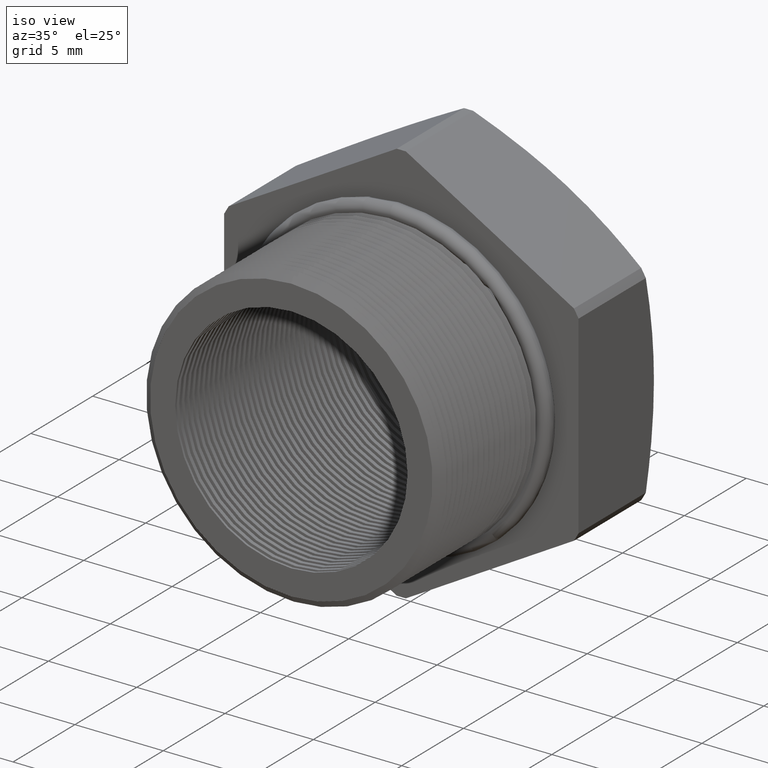
[diagram: clean part render]
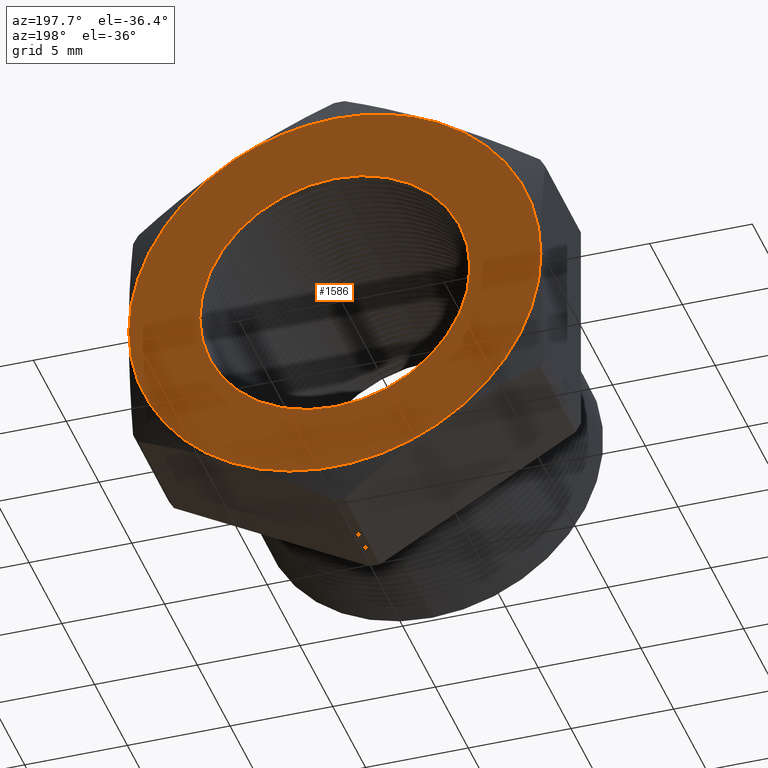
[diagram: tour spotlight — one face highlighted and labeled with its STEP entity id]
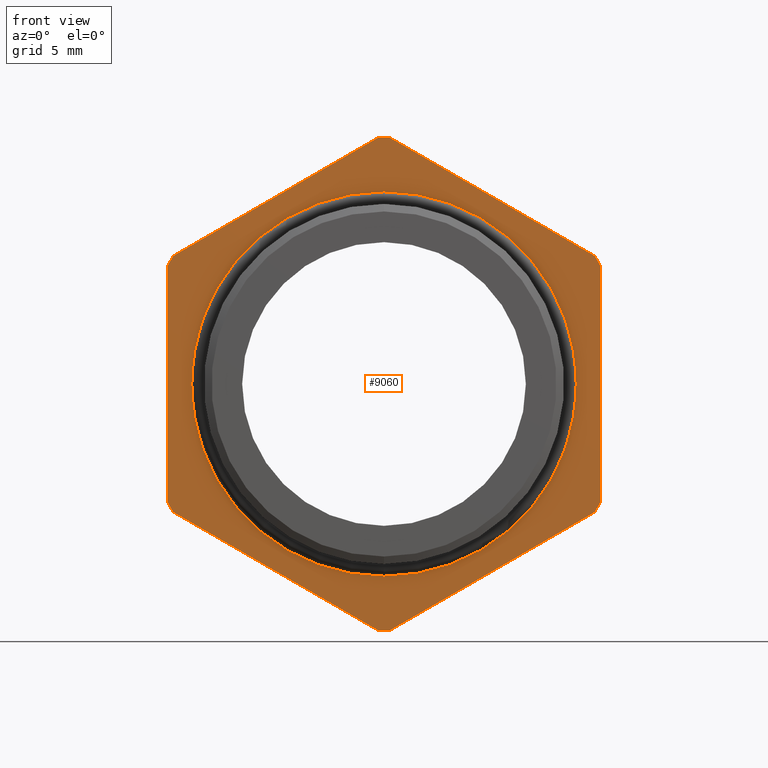
[diagram: tour spotlight — one face highlighted and labeled with its STEP entity id]
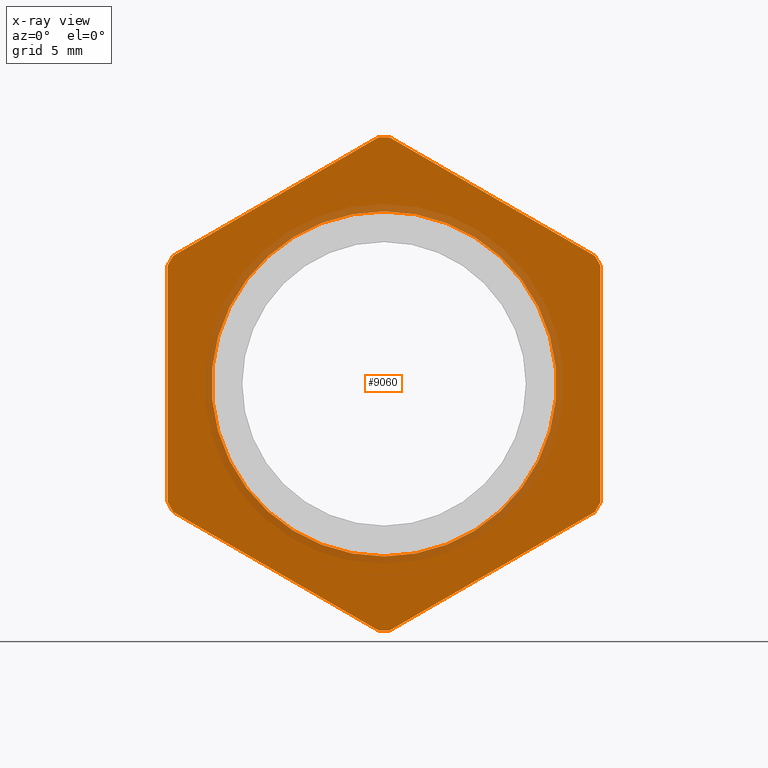
[diagram: x-ray of the same camera — body ghosted, this tour face saturated]
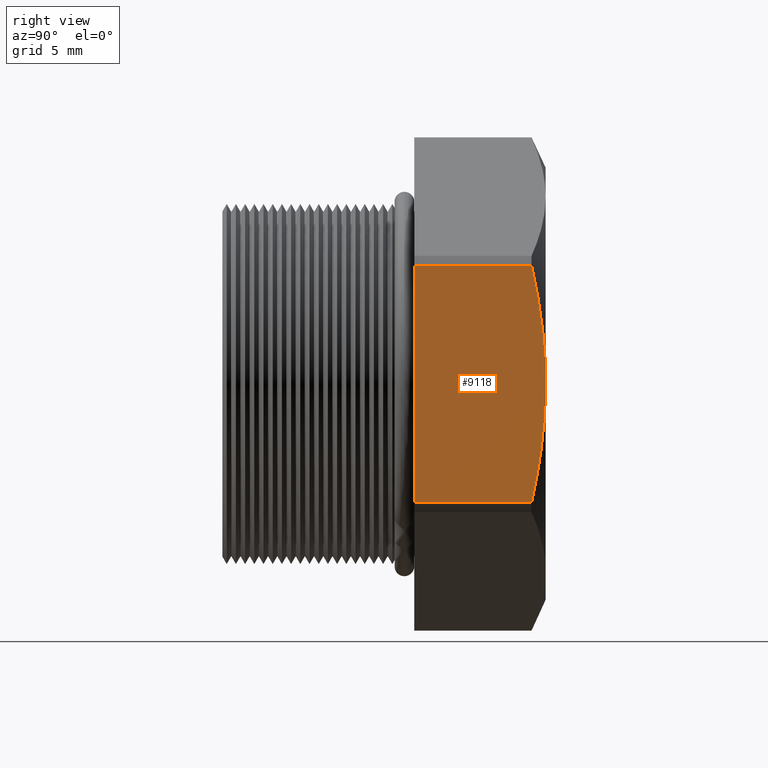
[diagram: tour spotlight — one face highlighted and labeled with its STEP entity id]
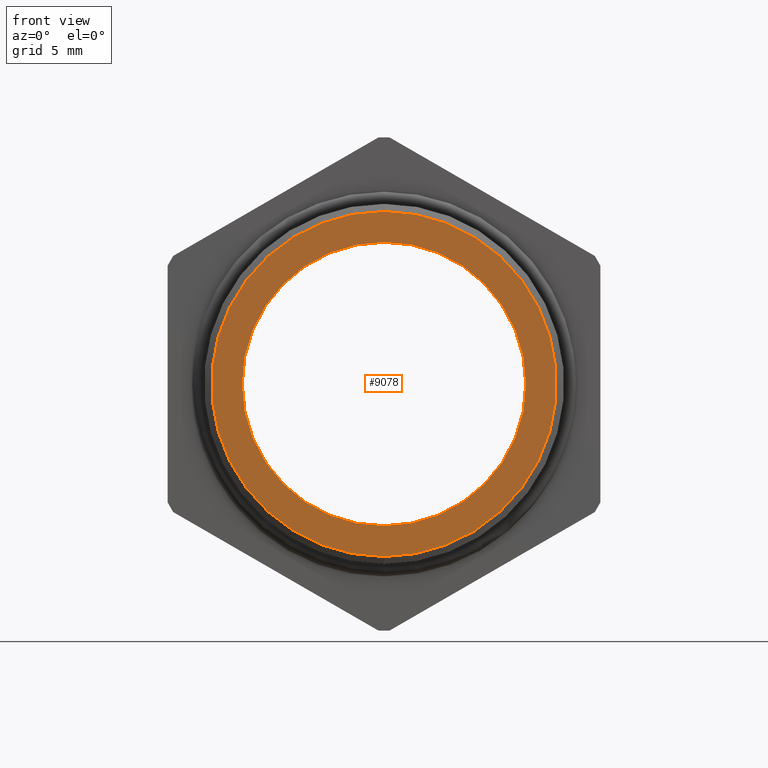
[diagram: tour spotlight — one face highlighted and labeled with its STEP entity id]
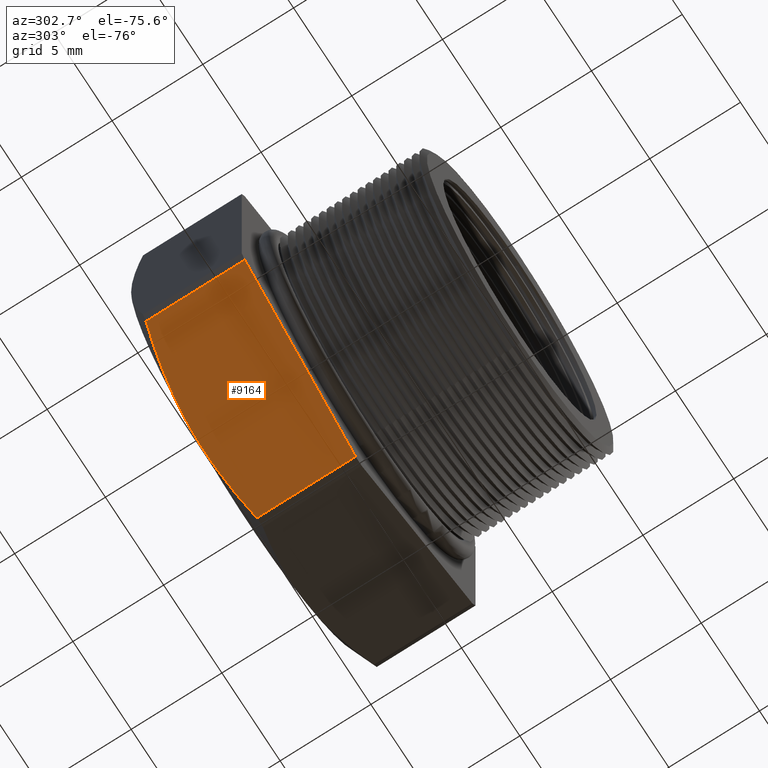
[diagram: tour spotlight — one face highlighted and labeled with its STEP entity id]
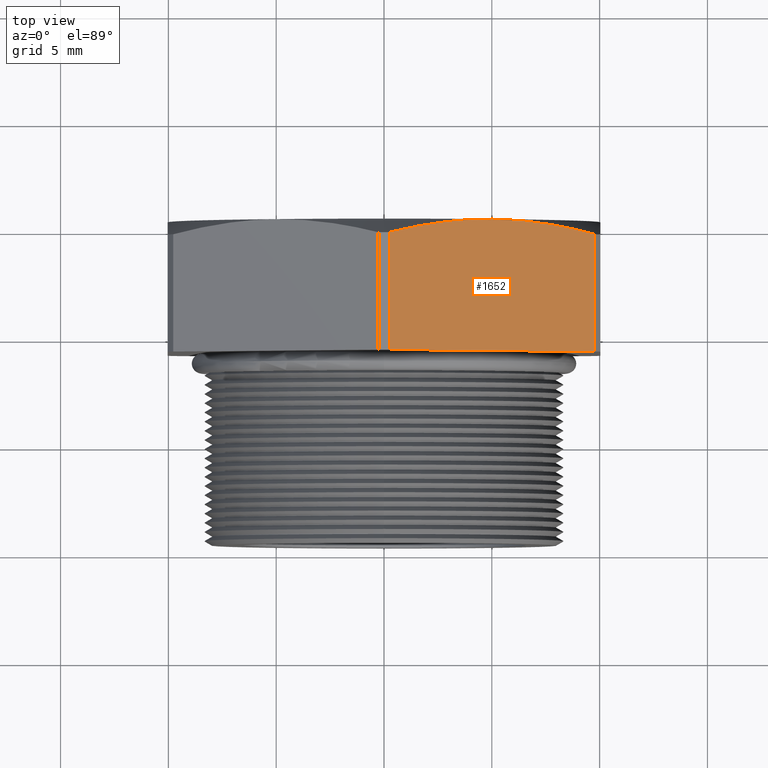
[diagram: tour spotlight — one face highlighted and labeled with its STEP entity id]
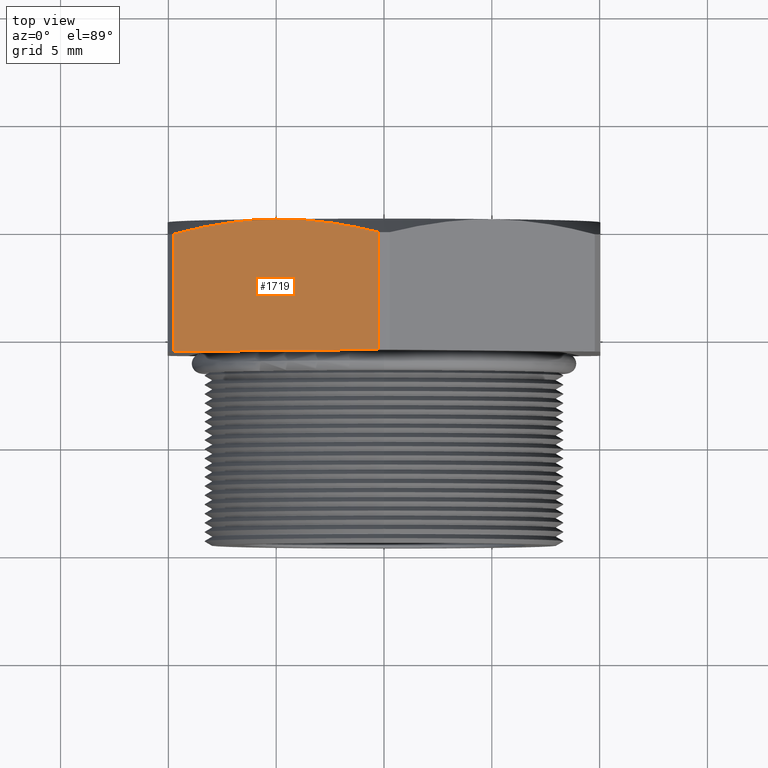
[diagram: tour spotlight — one face highlighted and labeled with its STEP entity id]
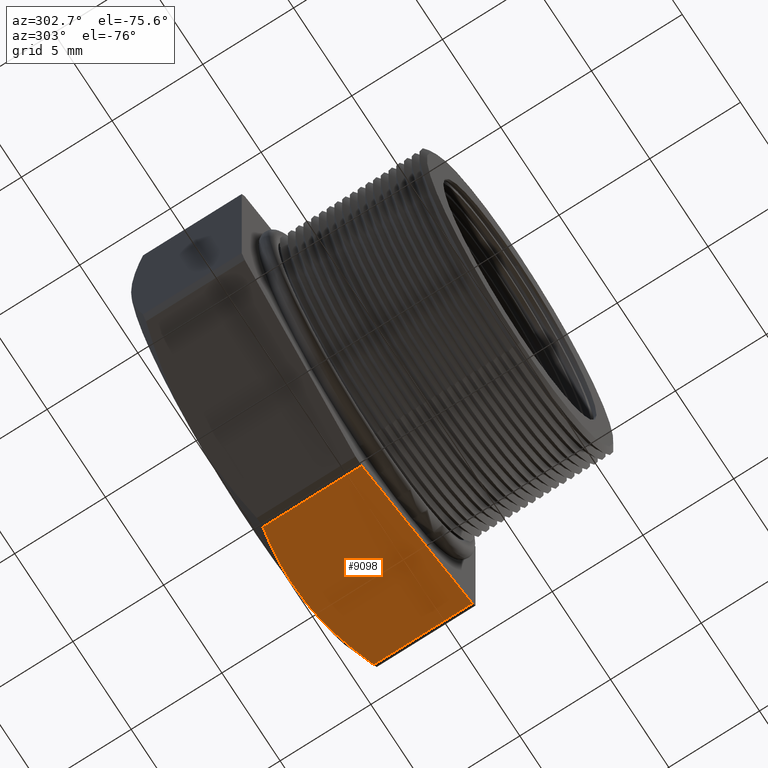
[diagram: tour spotlight — one face highlighted and labeled with its STEP entity id]
A machine part: a face-by-face anatomy tour. The part has 361 B-rep faces; the first image is the clean iso view, then the 8 largest visible faces are spotlighted one at a time (largest first), each with its STEP entity span.

Face 1 — auxiliary view, entity #1586. In plain terms, the highlighted planar face has unit normal (0, 1, 0).
Definition (entity closure, byte-faithful):
#1110 = EDGE_CURVE ( 'NONE', #1162, #1163, #3936, .T. ) ;
#1162 = VERTEX_POINT ( 'NONE', #4024 ) ;
#1163 = VERTEX_POINT ( 'NONE', #4018 ) ;
#1567 = ORIENTED_EDGE ( 'NONE', *, *, #1568, .T. ) ;
#1568 = EDGE_CURVE ( 'NONE', #8995, #1569, #4746, .T. ) ;
#1569 = VERTEX_POINT ( 'NONE', #4736 ) ;
#1570 = ORIENTED_EDGE ( 'NONE', *, *, #1571, .T. ) ;
#1571 = EDGE_CURVE ( 'NONE', #1569, #1572, #4735, .T. ) ;
#1572 = VERTEX_POINT ( 'NONE', #4730 ) ;
#1573 = ORIENTED_EDGE ( 'NONE', *, *, #1574, .T. ) ;
#1574 = EDGE_CURVE ( 'NONE', #1572, #1575, #4729, .T. ) ;
#1575 = VERTEX_POINT ( 'NONE', #4724 ) ;
#1576 = ORIENTED_EDGE ( 'NONE', *, *, #1577, .T. ) ;
#1577 = EDGE_CURVE ( 'NONE', #1575, #1578, #4785, .T. ) ;
#1578 = VERTEX_POINT ( 'NONE', #4780 ) ;
#1579 = ORIENTED_EDGE ( 'NONE', *, *, #1580, .T. ) ;
#1580 = EDGE_CURVE ( 'NONE', #1578, #1594, #4778, .T. ) ;
#1586 = ADVANCED_FACE ( 'NONE', ( #4764, #4763 ), #4762, .T. ) ;
#1587 = EDGE_LOOP ( 'NONE', ( #1588, #1590 ) ) ;
#1588 = ORIENTED_EDGE ( 'NONE', *, *, #1589, .T. ) ;
#1589 = EDGE_CURVE ( 'NONE', #1163, #1162, #4760, .T. ) ;
#1590 = ORIENTED_EDGE ( 'NONE', *, *, #1110, .T. ) ;
#1591 = EDGE_LOOP ( 'NONE', ( #1592, #1595, #1567, #1570, #1573, #1576, #1579 ) ) ;
#1592 = ORIENTED_EDGE ( 'NONE', *, *, #1593, .T. ) ;
#1593 = EDGE_CURVE ( 'NONE', #1594, #9000, #4817, .T. ) ;
#1594 = VERTEX_POINT ( 'NONE', #4812 ) ;
#1595 = ORIENTED_EDGE ( 'NONE', *, *, #9003, .T. ) ;
#3927 = DIRECTION ( 'NONE',  ( 0.0000000000000000000, 0.0000000000000000000, -1.000000000000000000 ) ) ;
#3928 = DIRECTION ( 'NONE',  ( -0.0000000000000000000, -1.000000000000000000, -0.0000000000000000000 ) ) ;
#3929 = CARTESIAN_POINT ( 'NONE',  ( 0.0000000000000000000, 0.4075548905829479200, 0.0000000000000000000 ) ) ;
#3930 = AXIS2_PLACEMENT_3D ( 'NONE', #3929, #3928, #3927 ) ;
#3936 = CIRCLE ( 'NONE', #3930, 0.2589880461203001900 ) ;
#4018 = CARTESIAN_POINT ( 'NONE',  ( 0.0000000000000000000, 0.4075548905829479200, -0.2589880461203001900 ) ) ;
#4024 = CARTESIAN_POINT ( 'NONE',  ( 3.171688816986526800E-017, 0.4075548905829479200, 0.2589880461203001900 ) ) ;
#4724 = CARTESIAN_POINT ( 'NONE',  ( -0.1975000000000000900, 0.4075548905829479200, -0.3420800344948531900 ) ) ;
#4725 = DIRECTION ( 'NONE',  ( 0.0000000000000000000, 0.0000000000000000000, 1.000000000000000000 ) ) ;
#4726 = DIRECTION ( 'NONE',  ( 0.0000000000000000000, 1.000000000000000000, 0.0000000000000000000 ) ) ;
#4727 = CARTESIAN_POINT ( 'NONE',  ( 0.0000000000000000000, 0.4075548905829479200, 0.0000000000000000000 ) ) ;
#4728 = AXIS2_PLACEMENT_3D ( 'NONE', #4727, #4726, #4725 ) ;
#4729 = CIRCLE ( 'NONE', #4728, 0.3949999999999999600 ) ;
#4730 = CARTESIAN_POINT ( 'NONE',  ( 0.1975000000000000400, 0.4075548905829479200, -0.3420800344948534700 ) ) ;
#4731 = DIRECTION ( 'NONE',  ( 0.0000000000000000000, 0.0000000000000000000, 1.000000000000000000 ) ) ;
#4732 = DIRECTION ( 'NONE',  ( 0.0000000000000000000, 1.000000000000000000, 0.0000000000000000000 ) ) ;
#4733 = CARTESIAN_POINT ( 'NONE',  ( 0.0000000000000000000, 0.4075548905829479200, 0.0000000000000000000 ) ) ;
#4734 = AXIS2_PLACEMENT_3D ( 'NONE', #4733, #4732, #4731 ) ;
#4735 = CIRCLE ( 'NONE', #4734, 0.3949999999999999600 ) ;
#4736 = CARTESIAN_POINT ( 'NONE',  ( 0.3949999999999999600, 0.4075548905829479200, 1.182924880895400500E-016 ) ) ;
#4737 = DIRECTION ( 'NONE',  ( 0.0000000000000000000, 0.0000000000000000000, 1.000000000000000000 ) ) ;
#4738 = DIRECTION ( 'NONE',  ( 0.0000000000000000000, 1.000000000000000000, 0.0000000000000000000 ) ) ;
#4739 = CARTESIAN_POINT ( 'NONE',  ( 0.0000000000000000000, 0.4075548905829479200, 0.0000000000000000000 ) ) ;
#4740 = AXIS2_PLACEMENT_3D ( 'NONE', #4739, #4738, #4737 ) ;
#4746 = CIRCLE ( 'NONE', #4740, 0.3949999999999999600 ) ;
#4753 = DIRECTION ( 'NONE',  ( 0.0000000000000000000, 0.0000000000000000000, -1.000000000000000000 ) ) ;
#4754 = DIRECTION ( 'NONE',  ( -0.0000000000000000000, -1.000000000000000000, -0.0000000000000000000 ) ) ;
#4755 = CARTESIAN_POINT ( 'NONE',  ( 0.0000000000000000000, 0.4075548905829479200, 0.0000000000000000000 ) ) ;
#4756 = AXIS2_PLACEMENT_3D ( 'NONE', #4755, #4754, #4753 ) ;
#4757 = DIRECTION ( 'NONE',  ( 0.0000000000000000000, -0.0000000000000000000, 1.000000000000000000 ) ) ;
#4758 = DIRECTION ( 'NONE',  ( 0.0000000000000000000, 1.000000000000000000, 0.0000000000000000000 ) ) ;
#4759 = AXIS2_PLACEMENT_3D ( 'NONE', #4761, #4758, #4757 ) ;
#4760 = CIRCLE ( 'NONE', #4756, 0.2589880461203001900 ) ;
#4761 = CARTESIAN_POINT ( 'NONE',  ( 0.4502999999999999800, 0.4075548905829479200, 0.0000000000000000000 ) ) ;
#4762 = PLANE ( 'NONE',  #4759 ) ;
#4763 = FACE_OUTER_BOUND ( 'NONE', #1591, .T. ) ;
#4764 = FACE_BOUND ( 'NONE', #1587, .T. ) ;
#4774 = DIRECTION ( 'NONE',  ( 0.0000000000000000000, 0.0000000000000000000, 1.000000000000000000 ) ) ;
#4775 = DIRECTION ( 'NONE',  ( 0.0000000000000000000, 1.000000000000000000, 0.0000000000000000000 ) ) ;
#4776 = CARTESIAN_POINT ( 'NONE',  ( 0.0000000000000000000, 0.4075548905829479200, 0.0000000000000000000 ) ) ;
#4777 = AXIS2_PLACEMENT_3D ( 'NONE', #4776, #4775, #4774 ) ;
#4778 = CIRCLE ( 'NONE', #4777, 0.3949999999999999600 ) ;
#4780 = CARTESIAN_POINT ( 'NONE',  ( -0.3949999999999999600, 0.4075548905829479200, 0.0000000000000000000 ) ) ;
#4781 = DIRECTION ( 'NONE',  ( 0.0000000000000000000, 0.0000000000000000000, 1.000000000000000000 ) ) ;
#4782 = DIRECTION ( 'NONE',  ( 0.0000000000000000000, 1.000000000000000000, 0.0000000000000000000 ) ) ;
#4783 = CARTESIAN_POINT ( 'NONE',  ( 0.0000000000000000000, 0.4075548905829479200, 0.0000000000000000000 ) ) ;
#4784 = AXIS2_PLACEMENT_3D ( 'NONE', #4783, #4782, #4781 ) ;
#4785 = CIRCLE ( 'NONE', #4784, 0.3949999999999999600 ) ;
#4812 = CARTESIAN_POINT ( 'NONE',  ( -0.1975000000000000100, 0.4075548905829479200, 0.3420800344948533600 ) ) ;
#4813 = DIRECTION ( 'NONE',  ( 0.0000000000000000000, 0.0000000000000000000, 1.000000000000000000 ) ) ;
#4814 = DIRECTION ( 'NONE',  ( 0.0000000000000000000, 1.000000000000000000, 0.0000000000000000000 ) ) ;
#4815 = CARTESIAN_POINT ( 'NONE',  ( 0.0000000000000000000, 0.4075548905829479200, 0.0000000000000000000 ) ) ;
#4816 = AXIS2_PLACEMENT_3D ( 'NONE', #4815, #4814, #4813 ) ;
#4817 = CIRCLE ( 'NONE', #4816, 0.3949999999999999600 ) ;
#7523 = CARTESIAN_POINT ( 'NONE',  ( 0.0000000000000000000, 0.4075548905829479200, 0.3949999999999999600 ) ) ;
#7524 = CARTESIAN_POINT ( 'NONE',  ( 0.1975000000000001800, 0.4075548905829479700, 0.3420800344948533000 ) ) ;
#7573 = DIRECTION ( 'NONE',  ( 0.0000000000000000000, 0.0000000000000000000, 1.000000000000000000 ) ) ;
#7574 = DIRECTION ( 'NONE',  ( 0.0000000000000000000, 1.000000000000000000, 0.0000000000000000000 ) ) ;
#7575 = CARTESIAN_POINT ( 'NONE',  ( 0.0000000000000000000, 0.4075548905829479200, 0.0000000000000000000 ) ) ;
#7576 = AXIS2_PLACEMENT_3D ( 'NONE', #7575, #7574, #7573 ) ;
#7577 = CIRCLE ( 'NONE', #7576, 0.3949999999999999600 ) ;
#8995 = VERTEX_POINT ( 'NONE', #7524 ) ;
#9000 = VERTEX_POINT ( 'NONE', #7523 ) ;
#9003 = EDGE_CURVE ( 'NONE', #9000, #8995, #7577, .T. ) ;

Face 2 — front view, entity #9060. An x-ray twin of the same camera follows (body ghosted, this face saturated) — the face is partly hidden behind the body. In plain terms, the highlighted planar face has unit normal (0, -1, -0).
Definition (entity closure, byte-faithful):
#1092 = EDGE_CURVE ( 'NONE', #1093, #1094, #3902, .T. ) ;
#1093 = VERTEX_POINT ( 'NONE', #3897 ) ;
#1094 = VERTEX_POINT ( 'NONE', #3896 ) ;
#1526 = VERTEX_POINT ( 'NONE', #4688 ) ;
#1582 = EDGE_CURVE ( 'NONE', #1583, #1526, #4773, .T. ) ;
#1583 = VERTEX_POINT ( 'NONE', #4769 ) ;
#1611 = VERTEX_POINT ( 'NONE', #4842 ) ;
#1613 = EDGE_CURVE ( 'NONE', #1526, #1611, #4840, .T. ) ;
#1618 = VERTEX_POINT ( 'NONE', #4826 ) ;
#1623 = VERTEX_POINT ( 'NONE', #4819 ) ;
#1630 = VERTEX_POINT ( 'NONE', #4870 ) ;
#1632 = EDGE_CURVE ( 'NONE', #1623, #1630, #4869, .T. ) ;
#1638 = VERTEX_POINT ( 'NONE', #4848 ) ;
#1645 = VERTEX_POINT ( 'NONE', #4901 ) ;
#1647 = EDGE_CURVE ( 'NONE', #1638, #1645, #4900, .T. ) ;
#1649 = VERTEX_POINT ( 'NONE', #4893 ) ;
#1651 = EDGE_CURVE ( 'NONE', #1669, #1649, #4888, .T. ) ;
#1662 = VERTEX_POINT ( 'NONE', #4922 ) ;
#1664 = EDGE_CURVE ( 'NONE', #1684, #1662, #4921, .T. ) ;
#1669 = VERTEX_POINT ( 'NONE', #4963 ) ;
#1677 = VERTEX_POINT ( 'NONE', #4948 ) ;
#1679 = EDGE_CURVE ( 'NONE', #1618, #1677, #4947, .T. ) ;
#1684 = VERTEX_POINT ( 'NONE', #4993 ) ;
#1718 = EDGE_CURVE ( 'NONE', #1645, #1669, #5001, .T. ) ;
#1728 = EDGE_CURVE ( 'NONE', #1649, #1684, #5042, .T. ) ;
#3896 = CARTESIAN_POINT ( 'NONE',  ( 3.857637417314162700E-017, 0.1675548905829479500, 0.3150000000000000000 ) ) ;
#3897 = CARTESIAN_POINT ( 'NONE',  ( 0.0000000000000000000, 0.1675548905829479500, -0.3150000000000000000 ) ) ;
#3898 = DIRECTION ( 'NONE',  ( 0.0000000000000000000, 0.0000000000000000000, -1.000000000000000000 ) ) ;
#3899 = DIRECTION ( 'NONE',  ( -0.0000000000000000000, -1.000000000000000000, -0.0000000000000000000 ) ) ;
#3900 = CARTESIAN_POINT ( 'NONE',  ( 0.0000000000000000000, 0.1675548905829479500, 0.0000000000000000000 ) ) ;
#3901 = AXIS2_PLACEMENT_3D ( 'NONE', #3900, #3899, #3898 ) ;
#3902 = CIRCLE ( 'NONE', #3901, 0.3150000000000000000 ) ;
#4688 = CARTESIAN_POINT ( 'NONE',  ( 0.0000000000000000000, 0.1675548905829479500, -0.4502999999999999800 ) ) ;
#4769 = CARTESIAN_POINT ( 'NONE',  ( -0.01026000026703719400, 0.1675548905829479500, -0.4501830987437449600 ) ) ;
#4770 = DIRECTION ( 'NONE',  ( 0.0000000000000000000, 0.0000000000000000000, -1.000000000000000000 ) ) ;
#4771 = DIRECTION ( 'NONE',  ( -0.0000000000000000000, -1.000000000000000000, -0.0000000000000000000 ) ) ;
#4772 = AXIS2_PLACEMENT_3D ( 'NONE', #4779, #4771, #4770 ) ;
#4773 = CIRCLE ( 'NONE', #4772, 0.4502999999999999800 ) ;
#4779 = CARTESIAN_POINT ( 'NONE',  ( 0.0000000000000000000, 0.1675548905829479500, 0.0000000000000000000 ) ) ;
#4819 = CARTESIAN_POINT ( 'NONE',  ( 0.3847399997329628000, 0.1675548905829479500, -0.2339769702459620100 ) ) ;
#4826 = CARTESIAN_POINT ( 'NONE',  ( -0.3949999999999999600, 0.1675548905829479500, -0.2162061284977833100 ) ) ;
#4836 = DIRECTION ( 'NONE',  ( 0.0000000000000000000, 0.0000000000000000000, -1.000000000000000000 ) ) ;
#4837 = DIRECTION ( 'NONE',  ( -0.0000000000000000000, -1.000000000000000000, -0.0000000000000000000 ) ) ;
#4838 = CARTESIAN_POINT ( 'NONE',  ( 0.0000000000000000000, 0.1675548905829479500, 0.0000000000000000000 ) ) ;
#4839 = AXIS2_PLACEMENT_3D ( 'NONE', #4838, #4837, #4836 ) ;
#4840 = CIRCLE ( 'NONE', #4839, 0.4502999999999999800 ) ;
#4842 = CARTESIAN_POINT ( 'NONE',  ( 0.01026000026703720500, 0.1675548905829479500, -0.4501830987437447900 ) ) ;
#4848 = CARTESIAN_POINT ( 'NONE',  ( 0.3949999999999999100, 0.1675548905829479500, 0.2162061284977834200 ) ) ;
#4865 = DIRECTION ( 'NONE',  ( 0.0000000000000000000, 0.0000000000000000000, -1.000000000000000000 ) ) ;
#4866 = DIRECTION ( 'NONE',  ( -0.0000000000000000000, -1.000000000000000000, -0.0000000000000000000 ) ) ;
#4867 = CARTESIAN_POINT ( 'NONE',  ( 0.0000000000000000000, 0.1675548905829479500, 0.0000000000000000000 ) ) ;
#4868 = AXIS2_PLACEMENT_3D ( 'NONE', #4867, #4866, #4865 ) ;
#4869 = CIRCLE ( 'NONE', #4868, 0.4502999999999999800 ) ;
#4870 = CARTESIAN_POINT ( 'NONE',  ( 0.3950000000000000200, 0.1675548905829479500, -0.2162061284977832000 ) ) ;
#4884 = DIRECTION ( 'NONE',  ( 0.0000000000000000000, 0.0000000000000000000, -1.000000000000000000 ) ) ;
#4885 = DIRECTION ( 'NONE',  ( -0.0000000000000000000, -1.000000000000000000, -0.0000000000000000000 ) ) ;
#4886 = CARTESIAN_POINT ( 'NONE',  ( 0.0000000000000000000, 0.1675548905829479500, 0.0000000000000000000 ) ) ;
#4887 = AXIS2_PLACEMENT_3D ( 'NONE', #4886, #4885, #4884 ) ;
#4888 = CIRCLE ( 'NONE', #4887, 0.4502999999999999800 ) ;
#4893 = CARTESIAN_POINT ( 'NONE',  ( -0.01026000026703719400, 0.1675548905829479500, 0.4501830987437449000 ) ) ;
#4896 = DIRECTION ( 'NONE',  ( 0.0000000000000000000, 0.0000000000000000000, -1.000000000000000000 ) ) ;
#4897 = DIRECTION ( 'NONE',  ( -0.0000000000000000000, -1.000000000000000000, -0.0000000000000000000 ) ) ;
#4898 = CARTESIAN_POINT ( 'NONE',  ( 0.0000000000000000000, 0.1675548905829479500, 0.0000000000000000000 ) ) ;
#4899 = AXIS2_PLACEMENT_3D ( 'NONE', #4898, #4897, #4896 ) ;
#4900 = CIRCLE ( 'NONE', #4899, 0.4502999999999999800 ) ;
#4901 = CARTESIAN_POINT ( 'NONE',  ( 0.3847399997329628600, 0.1675548905829479500, 0.2339769702459617900 ) ) ;
#4917 = DIRECTION ( 'NONE',  ( 0.0000000000000000000, 0.0000000000000000000, -1.000000000000000000 ) ) ;
#4918 = DIRECTION ( 'NONE',  ( -0.0000000000000000000, -1.000000000000000000, -0.0000000000000000000 ) ) ;
#4919 = CARTESIAN_POINT ( 'NONE',  ( 0.0000000000000000000, 0.1675548905829479500, 0.0000000000000000000 ) ) ;
#4920 = AXIS2_PLACEMENT_3D ( 'NONE', #4919, #4918, #4917 ) ;
#4921 = CIRCLE ( 'NONE', #4920, 0.4502999999999999800 ) ;
#4922 = CARTESIAN_POINT ( 'NONE',  ( -0.3949999999999999600, 0.1675548905829479500, 0.2162061284977833100 ) ) ;
#4943 = DIRECTION ( 'NONE',  ( 0.0000000000000000000, 0.0000000000000000000, -1.000000000000000000 ) ) ;
#4944 = DIRECTION ( 'NONE',  ( -0.0000000000000000000, -1.000000000000000000, -0.0000000000000000000 ) ) ;
#4945 = CARTESIAN_POINT ( 'NONE',  ( 0.0000000000000000000, 0.1675548905829479500, 0.0000000000000000000 ) ) ;
#4946 = AXIS2_PLACEMENT_3D ( 'NONE', #4945, #4944, #4943 ) ;
#4947 = CIRCLE ( 'NONE', #4946, 0.4502999999999999800 ) ;
#4948 = CARTESIAN_POINT ( 'NONE',  ( -0.3847399997329630200, 0.1675548905829479500, -0.2339769702459614800 ) ) ;
#4963 = CARTESIAN_POINT ( 'NONE',  ( 0.01026000026703746700, 0.1675548905829479500, 0.4501830987437449600 ) ) ;
#4993 = CARTESIAN_POINT ( 'NONE',  ( -0.3847399997329628000, 0.1675548905829479500, 0.2339769702459618100 ) ) ;
#5000 = CARTESIAN_POINT ( 'NONE',  ( 0.4337500000000000200, 0.1675548905829479500, 0.2056810333988042200 ) ) ;
#5001 = LINE ( 'NONE', #5000, #5058 ) ;
#5033 = DIRECTION ( 'NONE',  ( -0.8660254037844386000, 0.0000000000000000000, -0.4999999999999998300 ) ) ;
#5034 = VECTOR ( 'NONE', #5033, 39.37007874015748900 ) ;
#5035 = CARTESIAN_POINT ( 'NONE',  ( 0.03875000000000002700, 0.1675548905829479500, 0.4784790355909024400 ) ) ;
#5042 = LINE ( 'NONE', #5035, #5034 ) ;
#5057 = DIRECTION ( 'NONE',  ( -0.8660254037844384900, 0.0000000000000000000, 0.5000000000000001100 ) ) ;
#5058 = VECTOR ( 'NONE', #5057, 39.37007874015748900 ) ;
#7612 = DIRECTION ( 'NONE',  ( 0.0000000000000000000, 0.0000000000000000000, -1.000000000000000000 ) ) ;
#7613 = DIRECTION ( 'NONE',  ( -0.0000000000000000000, -1.000000000000000000, -0.0000000000000000000 ) ) ;
#7614 = CARTESIAN_POINT ( 'NONE',  ( 0.0000000000000000000, 0.1675548905829479500, 0.0000000000000000000 ) ) ;
#7615 = AXIS2_PLACEMENT_3D ( 'NONE', #7614, #7613, #7612 ) ;
#7616 = CIRCLE ( 'NONE', #7615, 0.3150000000000000000 ) ;
#7658 = DIRECTION ( 'NONE',  ( 0.0000000000000000000, 0.0000000000000000000, -1.000000000000000000 ) ) ;
#7659 = DIRECTION ( 'NONE',  ( 0.0000000000000000000, -1.000000000000000000, -0.0000000000000000000 ) ) ;
#7660 = AXIS2_PLACEMENT_3D ( 'NONE', #7662, #7659, #7658 ) ;
#7662 = CARTESIAN_POINT ( 'NONE',  ( 0.3150000000000000000, 0.1675548905829479500, 0.0000000000000000000 ) ) ;
#7663 = PLANE ( 'NONE',  #7660 ) ;
#7664 = FACE_OUTER_BOUND ( 'NONE', #9054, .T. ) ;
#7665 = FACE_BOUND ( 'NONE', #9057, .T. ) ;
#7682 = DIRECTION ( 'NONE',  ( 0.0000000000000000000, 0.0000000000000000000, -1.000000000000000000 ) ) ;
#7683 = VECTOR ( 'NONE', #7682, 39.37007874015748100 ) ;
#7684 = CARTESIAN_POINT ( 'NONE',  ( -0.3949999999999999600, 0.1675548905829479500, 0.0000000000000000000 ) ) ;
#7685 = LINE ( 'NONE', #7684, #7683 ) ;
#7704 = DIRECTION ( 'NONE',  ( 0.8660254037844384900, 0.0000000000000000000, -0.5000000000000001100 ) ) ;
#7705 = VECTOR ( 'NONE', #7704, 39.37007874015748900 ) ;
#7706 = CARTESIAN_POINT ( 'NONE',  ( 0.03874999999999986100, 0.1675548905829479500, -0.4784790355909022700 ) ) ;
#7707 = LINE ( 'NONE', #7706, #7705 ) ;
#7777 = DIRECTION ( 'NONE',  ( 0.8660254037844388200, 0.0000000000000000000, 0.4999999999999998300 ) ) ;
#7778 = VECTOR ( 'NONE', #7777, 39.37007874015748100 ) ;
#7779 = CARTESIAN_POINT ( 'NONE',  ( 0.4337499999999999700, 0.1675548905829479500, -0.2056810333988043400 ) ) ;
#7780 = LINE ( 'NONE', #7779, #7778 ) ;
#7842 = DIRECTION ( 'NONE',  ( -2.994746533912406700E-016, 0.0000000000000000000, 1.000000000000000000 ) ) ;
#7843 = VECTOR ( 'NONE', #7842, 39.37007874015748100 ) ;
#7844 = CARTESIAN_POINT ( 'NONE',  ( 0.3949999999999999600, 0.1675548905829479500, 2.395797227129924600E-017 ) ) ;
#7845 = LINE ( 'NONE', #7844, #7843 ) ;
#9047 = EDGE_CURVE ( 'NONE', #1094, #1093, #7616, .T. ) ;
#9049 = ORIENTED_EDGE ( 'NONE', *, *, #9155, .T. ) ;
#9053 = ORIENTED_EDGE ( 'NONE', *, *, #1632, .T. ) ;
#9054 = EDGE_LOOP ( 'NONE', ( #9053, #9049, #9071, #9074, #9072, #9073, #9066, #9067, #9069, #9068, #9061, #9059, #9058 ) ) ;
#9055 = ORIENTED_EDGE ( 'NONE', *, *, #9047, .F. ) ;
#9056 = ORIENTED_EDGE ( 'NONE', *, *, #1092, .F. ) ;
#9057 = EDGE_LOOP ( 'NONE', ( #9056, #9055 ) ) ;
#9058 = ORIENTED_EDGE ( 'NONE', *, *, #9116, .T. ) ;
#9059 = ORIENTED_EDGE ( 'NONE', *, *, #1613, .T. ) ;
#9060 = ADVANCED_FACE ( 'NONE', ( #7665, #7664 ), #7663, .T. ) ;
#9061 = ORIENTED_EDGE ( 'NONE', *, *, #1582, .T. ) ;
#9066 = ORIENTED_EDGE ( 'NONE', *, *, #1664, .T. ) ;
#9067 = ORIENTED_EDGE ( 'NONE', *, *, #9088, .T. ) ;
#9068 = ORIENTED_EDGE ( 'NONE', *, *, #9103, .T. ) ;
#9069 = ORIENTED_EDGE ( 'NONE', *, *, #1679, .T. ) ;
#9071 = ORIENTED_EDGE ( 'NONE', *, *, #1647, .T. ) ;
#9072 = ORIENTED_EDGE ( 'NONE', *, *, #1651, .T. ) ;
#9073 = ORIENTED_EDGE ( 'NONE', *, *, #1728, .T. ) ;
#9074 = ORIENTED_EDGE ( 'NONE', *, *, #1718, .T. ) ;
#9088 = EDGE_CURVE ( 'NONE', #1662, #1618, #7685, .T. ) ;
#9103 = EDGE_CURVE ( 'NONE', #1677, #1583, #7707, .T. ) ;
#9116 = EDGE_CURVE ( 'NONE', #1611, #1623, #7780, .T. ) ;
#9155 = EDGE_CURVE ( 'NONE', #1630, #1638, #7845, .T. ) ;

Face 3 — right view, entity #9118. In plain terms, the highlighted planar face has unit normal (1, -0, 0).
Definition (entity closure, byte-faithful):
#1569 = VERTEX_POINT ( 'NONE', #4736 ) ;
#1627 = VERTEX_POINT ( 'NONE', #4875 ) ;
#1629 = EDGE_CURVE ( 'NONE', #1627, #1630, #4874, .T. ) ;
#1630 = VERTEX_POINT ( 'NONE', #4870 ) ;
#1637 = EDGE_CURVE ( 'NONE', #1638, #1639, #4852, .T. ) ;
#1638 = VERTEX_POINT ( 'NONE', #4848 ) ;
#1639 = VERTEX_POINT ( 'NONE', #4847 ) ;
#4736 = CARTESIAN_POINT ( 'NONE',  ( 0.3949999999999999600, 0.4075548905829479200, 1.182924880895400500E-016 ) ) ;
#4847 = CARTESIAN_POINT ( 'NONE',  ( 0.3949999999999999100, 0.3817680770869766300, 0.2162061284977834200 ) ) ;
#4848 = CARTESIAN_POINT ( 'NONE',  ( 0.3949999999999999100, 0.1675548905829479500, 0.2162061284977834200 ) ) ;
#4849 = DIRECTION ( 'NONE',  ( 0.0000000000000000000, 1.000000000000000000, 0.0000000000000000000 ) ) ;
#4850 = VECTOR ( 'NONE', #4849, 39.37007874015748100 ) ;
#4851 = CARTESIAN_POINT ( 'NONE',  ( 0.3949999999999999100, 0.0000000000000000000, 0.2162061284977834200 ) ) ;
#4852 = LINE ( 'NONE', #4851, #4850 ) ;
#4870 = CARTESIAN_POINT ( 'NONE',  ( 0.3950000000000000200, 0.1675548905829479500, -0.2162061284977832000 ) ) ;
#4871 = DIRECTION ( 'NONE',  ( -0.0000000000000000000, -1.000000000000000000, -0.0000000000000000000 ) ) ;
#4872 = VECTOR ( 'NONE', #4871, 39.37007874015748100 ) ;
#4873 = CARTESIAN_POINT ( 'NONE',  ( 0.3950000000000000200, 0.0000000000000000000, -0.2162061284977832000 ) ) ;
#4874 = LINE ( 'NONE', #4873, #4872 ) ;
#4875 = CARTESIAN_POINT ( 'NONE',  ( 0.3950000000000000200, 0.3817680770869807900, -0.2162061284977874500 ) ) ;
#7733 = CARTESIAN_POINT ( 'NONE',  ( 0.3949999999999999100, 0.3817680770869766300, 0.2162061284977834200 ) ) ;
#7734 = CARTESIAN_POINT ( 'NONE',  ( 0.3949999999999999100, 0.3857283079575490900, 0.1985179992191863900 ) ) ;
#7735 = CARTESIAN_POINT ( 'NONE',  ( 0.3949999999999999600, 0.3893434243502194600, 0.1807051416628362400 ) ) ;
#7736 = CARTESIAN_POINT ( 'NONE',  ( 0.3949999999999999100, 0.3957261188471292700, 0.1447731166216497100 ) ) ;
#7737 = CARTESIAN_POINT ( 'NONE',  ( 0.3949999999999999100, 0.3984951459428464600, 0.1266131864777914900 ) ) ;
#7738 = CARTESIAN_POINT ( 'NONE',  ( 0.3949999999999999600, 0.4052039355878226400, 0.07230054657575603300 ) ) ;
#7739 = CARTESIAN_POINT ( 'NONE',  ( 0.3950000000000000200, 0.4075548905829479200, 0.03612954022846508900 ) ) ;
#7740 = CARTESIAN_POINT ( 'NONE',  ( 0.3949999999999999600, 0.4075548905829479200, 1.182924880895400500E-016 ) ) ;
#7741 = B_SPLINE_CURVE_WITH_KNOTS ( 'NONE', 3,
 ( #7740, #7739, #7738, #7737, #7736, #7735, #7734, #7733 ),
 .UNSPECIFIED., .F., .F.,
 ( 4, 2, 2, 4 ),
 ( 0.01589219028229338400, 0.01866199860002303000, 0.02004690275888785400, 0.02143180691775267700 ),
 .UNSPECIFIED. ) ;
#7770 = DIRECTION ( 'NONE',  ( 2.994746533912406700E-016, 0.0000000000000000000, -1.000000000000000000 ) ) ;
#7771 = DIRECTION ( 'NONE',  ( 1.000000000000000000, -0.0000000000000000000, 2.994746533912406700E-016 ) ) ;
#7772 = AXIS2_PLACEMENT_3D ( 'NONE', #7773, #7771, #7770 ) ;
#7773 = CARTESIAN_POINT ( 'NONE',  ( 0.3950000000000000200, 0.4075548905829479700, -0.2280533563299023100 ) ) ;
#7774 = PLANE ( 'NONE',  #7772 ) ;
#7775 = FACE_OUTER_BOUND ( 'NONE', #9115, .T. ) ;
#7781 = CARTESIAN_POINT ( 'NONE',  ( 0.3949999999999999600, 0.4075548905829479200, 1.182924880895400500E-016 ) ) ;
#7782 = CARTESIAN_POINT ( 'NONE',  ( 0.3950000000000000200, 0.4075548905829479700, -0.03615391846087630300 ) ) ;
#7783 = CARTESIAN_POINT ( 'NONE',  ( 0.3949999999999999100, 0.4052017611603078700, -0.07226633245039768000 ) ) ;
#7784 = CARTESIAN_POINT ( 'NONE',  ( 0.3950000000000000200, 0.3963023347622854400, -0.1444172013854097800 ) ) ;
#7785 = CARTESIAN_POINT ( 'NONE',  ( 0.3949999999999999600, 0.3897427823618834200, -0.1805875945104273000 ) ) ;
#7786 = CARTESIAN_POINT ( 'NONE',  ( 0.3950000000000000200, 0.3817680770869807900, -0.2162061284977874500 ) ) ;
#7787 = B_SPLINE_CURVE_WITH_KNOTS ( 'NONE', 3,
 ( #7786, #7785, #7784, #7783, #7782, #7781 ),
 .UNSPECIFIED., .F., .F.,
 ( 4, 2, 4 ),
 ( 0.01034883581731967100, 0.01312051304980652700, 0.01589219028229338400 ),
 .UNSPECIFIED. ) ;
#7842 = DIRECTION ( 'NONE',  ( -2.994746533912406700E-016, 0.0000000000000000000, 1.000000000000000000 ) ) ;
#7843 = VECTOR ( 'NONE', #7842, 39.37007874015748100 ) ;
#7844 = CARTESIAN_POINT ( 'NONE',  ( 0.3949999999999999600, 0.1675548905829479500, 2.395797227129924600E-017 ) ) ;
#7845 = LINE ( 'NONE', #7844, #7843 ) ;
#9110 = EDGE_CURVE ( 'NONE', #1569, #1639, #7741, .T. ) ;
#9111 = ORIENTED_EDGE ( 'NONE', *, *, #9110, .T. ) ;
#9112 = EDGE_CURVE ( 'NONE', #1627, #1569, #7787, .T. ) ;
#9113 = ORIENTED_EDGE ( 'NONE', *, *, #9112, .T. ) ;
#9114 = ORIENTED_EDGE ( 'NONE', *, *, #1637, .F. ) ;
#9115 = EDGE_LOOP ( 'NONE', ( #9117, #9113, #9111, #9114, #9134 ) ) ;
#9117 = ORIENTED_EDGE ( 'NONE', *, *, #1629, .F. ) ;
#9118 = ADVANCED_FACE ( 'NONE', ( #7775 ), #7774, .T. ) ;
#9134 = ORIENTED_EDGE ( 'NONE', *, *, #9155, .F. ) ;
#9155 = EDGE_CURVE ( 'NONE', #1630, #1638, #7845, .T. ) ;

Face 4 — front view, entity #9078. In plain terms, the highlighted planar face has unit normal (0, -1, -0).
Definition (entity closure, byte-faithful):
#606 = EDGE_CURVE ( 'NONE', #633, #607, #2913, .T. ) ;
#607 = VERTEX_POINT ( 'NONE', #2908 ) ;
#633 = VERTEX_POINT ( 'NONE', #2981 ) ;
#1120 = VERTEX_POINT ( 'NONE', #3970 ) ;
#1122 = EDGE_CURVE ( 'NONE', #1120, #1123, #3969, .T. ) ;
#1123 = VERTEX_POINT ( 'NONE', #3964 ) ;
#2908 = CARTESIAN_POINT ( 'NONE',  ( 0.0000000000000000000, -0.1824451094170520000, 0.3150000000000000000 ) ) ;
#2909 = DIRECTION ( 'NONE',  ( 0.0000000000000000000, 0.0000000000000000000, -1.000000000000000000 ) ) ;
#2910 = DIRECTION ( 'NONE',  ( 0.0000000000000000000, 1.000000000000000000, 0.0000000000000000000 ) ) ;
#2911 = CARTESIAN_POINT ( 'NONE',  ( 0.0000000000000000000, -0.1824451094170520000, 0.0000000000000000000 ) ) ;
#2912 = AXIS2_PLACEMENT_3D ( 'NONE', #2911, #2910, #2909 ) ;
#2913 = CIRCLE ( 'NONE', #2912, 0.3150000000000000000 ) ;
#2981 = CARTESIAN_POINT ( 'NONE',  ( 3.857637417314162700E-017, -0.1824451094170520000, -0.3150000000000000000 ) ) ;
#3964 = CARTESIAN_POINT ( 'NONE',  ( 0.0000000000000000000, -0.1824451094170520000, -0.2589880461203001900 ) ) ;
#3965 = DIRECTION ( 'NONE',  ( 0.0000000000000000000, 0.0000000000000000000, -1.000000000000000000 ) ) ;
#3966 = DIRECTION ( 'NONE',  ( -0.0000000000000000000, -1.000000000000000000, -0.0000000000000000000 ) ) ;
#3967 = CARTESIAN_POINT ( 'NONE',  ( 0.0000000000000000000, -0.1824451094170520000, 0.0000000000000000000 ) ) ;
#3968 = AXIS2_PLACEMENT_3D ( 'NONE', #3967, #3966, #3965 ) ;
#3969 = CIRCLE ( 'NONE', #3968, 0.2589880461203001900 ) ;
#3970 = CARTESIAN_POINT ( 'NONE',  ( 3.171688816986526800E-017, -0.1824451094170520000, 0.2589880461203001900 ) ) ;
#6874 = CARTESIAN_POINT ( 'NONE',  ( 0.2589880461203001900, -0.1824451094170520000, 0.0000000000000000000 ) ) ;
#6875 = AXIS2_PLACEMENT_3D ( 'NONE', #6874, #7646, #7645 ) ;
#6986 = DIRECTION ( 'NONE',  ( 0.0000000000000000000, 0.0000000000000000000, -1.000000000000000000 ) ) ;
#6987 = DIRECTION ( 'NONE',  ( -0.0000000000000000000, -1.000000000000000000, -0.0000000000000000000 ) ) ;
#6988 = CARTESIAN_POINT ( 'NONE',  ( 0.0000000000000000000, -0.1824451094170520000, 0.0000000000000000000 ) ) ;
#6989 = AXIS2_PLACEMENT_3D ( 'NONE', #6988, #6987, #6986 ) ;
#6990 = CIRCLE ( 'NONE', #6989, 0.2589880461203001900 ) ;
#7126 = PLANE ( 'NONE',  #6875 ) ;
#7645 = DIRECTION ( 'NONE',  ( 0.0000000000000000000, 0.0000000000000000000, -1.000000000000000000 ) ) ;
#7646 = DIRECTION ( 'NONE',  ( 0.0000000000000000000, -1.000000000000000000, -0.0000000000000000000 ) ) ;
#7647 = FACE_BOUND ( 'NONE', #8812, .T. ) ;
#7648 = FACE_OUTER_BOUND ( 'NONE', #9077, .T. ) ;
#7649 = DIRECTION ( 'NONE',  ( 0.0000000000000000000, 0.0000000000000000000, -1.000000000000000000 ) ) ;
#7650 = DIRECTION ( 'NONE',  ( 0.0000000000000000000, 1.000000000000000000, 0.0000000000000000000 ) ) ;
#7651 = CARTESIAN_POINT ( 'NONE',  ( 0.0000000000000000000, -0.1824451094170520000, 0.0000000000000000000 ) ) ;
#7652 = AXIS2_PLACEMENT_3D ( 'NONE', #7651, #7650, #7649 ) ;
#7653 = CIRCLE ( 'NONE', #7652, 0.3150000000000000000 ) ;
#8805 = ORIENTED_EDGE ( 'NONE', *, *, #8814, .F. ) ;
#8806 = ORIENTED_EDGE ( 'NONE', *, *, #606, .F. ) ;
#8808 = ORIENTED_EDGE ( 'NONE', *, *, #1122, .F. ) ;
#8812 = EDGE_LOOP ( 'NONE', ( #8805, #8808 ) ) ;
#8814 = EDGE_CURVE ( 'NONE', #1123, #1120, #6990, .T. ) ;
#9070 = ORIENTED_EDGE ( 'NONE', *, *, #9075, .F. ) ;
#9075 = EDGE_CURVE ( 'NONE', #607, #633, #7653, .T. ) ;
#9077 = EDGE_LOOP ( 'NONE', ( #9070, #8806 ) ) ;
#9078 = ADVANCED_FACE ( 'NONE', ( #7648, #7647 ), #7126, .T. ) ;

Face 5 — auxiliary view, entity #9164. In plain terms, the highlighted planar face has unit normal (-0.5, 0, -0.866).
Definition (entity closure, byte-faithful):
#248 = EDGE_LOOP ( 'NONE', ( #264, #9107, #9109, #9104, #9102 ) ) ;
#264 = ORIENTED_EDGE ( 'NONE', *, *, #1676, .F. ) ;
#1575 = VERTEX_POINT ( 'NONE', #4724 ) ;
#1583 = VERTEX_POINT ( 'NONE', #4769 ) ;
#1585 = EDGE_CURVE ( 'NONE', #1583, #1604, #4768, .T. ) ;
#1604 = VERTEX_POINT ( 'NONE', #4792 ) ;
#1620 = VERTEX_POINT ( 'NONE', #4824 ) ;
#1676 = EDGE_CURVE ( 'NONE', #1620, #1677, #4952, .T. ) ;
#1677 = VERTEX_POINT ( 'NONE', #4948 ) ;
#4724 = CARTESIAN_POINT ( 'NONE',  ( -0.1975000000000000900, 0.4075548905829479200, -0.3420800344948531900 ) ) ;
#4765 = DIRECTION ( 'NONE',  ( 0.0000000000000000000, 1.000000000000000000, 0.0000000000000000000 ) ) ;
#4766 = VECTOR ( 'NONE', #4765, 39.37007874015748100 ) ;
#4767 = CARTESIAN_POINT ( 'NONE',  ( -0.01026000026703705700, 0.0000000000000000000, -0.4501830987437449600 ) ) ;
#4768 = LINE ( 'NONE', #4767, #4766 ) ;
#4769 = CARTESIAN_POINT ( 'NONE',  ( -0.01026000026703719400, 0.1675548905829479500, -0.4501830987437449600 ) ) ;
#4792 = CARTESIAN_POINT ( 'NONE',  ( -0.01026000026703705900, 0.3817680770869766300, -0.4501830987437449000 ) ) ;
#4824 = CARTESIAN_POINT ( 'NONE',  ( -0.3847399997329630800, 0.3817680770869766900, -0.2339769702459614200 ) ) ;
#4948 = CARTESIAN_POINT ( 'NONE',  ( -0.3847399997329630200, 0.1675548905829479500, -0.2339769702459614800 ) ) ;
#4949 = DIRECTION ( 'NONE',  ( -0.0000000000000000000, -1.000000000000000000, -0.0000000000000000000 ) ) ;
#4950 = VECTOR ( 'NONE', #4949, 39.37007874015748100 ) ;
#4951 = CARTESIAN_POINT ( 'NONE',  ( -0.3847399997329630800, 0.0000000000000000000, -0.2339769702459615100 ) ) ;
#4952 = LINE ( 'NONE', #4951, #4950 ) ;
#7703 = B_SPLINE_CURVE_WITH_KNOTS ( 'NONE', 3,
 ( #7754, #7753, #7752, #7751, #7750, #7749 ),
 .UNSPECIFIED., .F., .F.,
 ( 4, 2, 4 ),
 ( 0.005520192186429568100, 0.008258536476824115300, 0.01099688076721866200 ),
 .UNSPECIFIED. ) ;
#7704 = DIRECTION ( 'NONE',  ( 0.8660254037844384900, 0.0000000000000000000, -0.5000000000000001100 ) ) ;
#7705 = VECTOR ( 'NONE', #7704, 39.37007874015748900 ) ;
#7706 = CARTESIAN_POINT ( 'NONE',  ( 0.03874999999999986100, 0.1675548905829479500, -0.4784790355909022700 ) ) ;
#7707 = LINE ( 'NONE', #7706, #7705 ) ;
#7742 = CARTESIAN_POINT ( 'NONE',  ( -0.1975000000000000900, 0.4075548905829479200, -0.3420800344948531900 ) ) ;
#7743 = CARTESIAN_POINT ( 'NONE',  ( -0.2289182622552071700, 0.4075548905829479700, -0.3239406923243390300 ) ) ;
#7744 = CARTESIAN_POINT ( 'NONE',  ( -0.2602199223343859000, 0.4051865378565923100, -0.3058686704515430300 ) ) ;
#7745 = CARTESIAN_POINT ( 'NONE',  ( -0.3226184986981741600, 0.3962912005447679100, -0.2698428355908605300 ) ) ;
#7746 = CARTESIAN_POINT ( 'NONE',  ( -0.3537166105170323500, 0.3897884989263424300, -0.2518883323609535400 ) ) ;
#7747 = CARTESIAN_POINT ( 'NONE',  ( -0.3847399997329630800, 0.3817680770869766900, -0.2339769702459614200 ) ) ;
#7748 = B_SPLINE_CURVE_WITH_KNOTS ( 'NONE', 3,
 ( #7747, #7746, #7745, #7744, #7743, #7742 ),
 .UNSPECIFIED., .F., .F.,
 ( 4, 2, 4 ),
 ( 2.335025902574512600E-007, 0.002760212844509912700, 0.005520192186429568100 ),
 .UNSPECIFIED. ) ;
#7749 = CARTESIAN_POINT ( 'NONE',  ( -0.01026000026703705900, 0.3817680770869766300, -0.4501830987437449000 ) ) ;
#7750 = CARTESIAN_POINT ( 'NONE',  ( -0.04113558834110792700, 0.3897502881590466700, -0.4323570696577919700 ) ) ;
#7751 = CARTESIAN_POINT ( 'NONE',  ( -0.07225680565382706900, 0.3962764420413619800, -0.4143892264647846000 ) ) ;
#7752 = CARTESIAN_POINT ( 'NONE',  ( -0.1350411223813805000, 0.4052207272773966600, -0.3781406843012450900 ) ) ;
#7753 = CARTESIAN_POINT ( 'NONE',  ( -0.1663280206471310400, 0.4075548905829478600, -0.3600771851654055400 ) ) ;
#7754 = CARTESIAN_POINT ( 'NONE',  ( -0.1975000000000000900, 0.4075548905829479200, -0.3420800344948531900 ) ) ;
#7825 = DIRECTION ( 'NONE',  ( -0.8660254037844384900, 0.0000000000000000000, 0.5000000000000001100 ) ) ;
#7826 = DIRECTION ( 'NONE',  ( -0.5000000000000002200, 0.0000000000000000000, -0.8660254037844386000 ) ) ;
#7827 = AXIS2_PLACEMENT_3D ( 'NONE', #7829, #7826, #7825 ) ;
#7829 = CARTESIAN_POINT ( 'NONE',  ( -0.3949999999999999600, 0.4075548905829479700, -0.2280533563299020300 ) ) ;
#7830 = PLANE ( 'NONE',  #7827 ) ;
#7831 = FACE_OUTER_BOUND ( 'NONE', #248, .T. ) ;
#9102 = ORIENTED_EDGE ( 'NONE', *, *, #9103, .F. ) ;
#9103 = EDGE_CURVE ( 'NONE', #1677, #1583, #7707, .T. ) ;
#9104 = ORIENTED_EDGE ( 'NONE', *, *, #1585, .F. ) ;
#9105 = EDGE_CURVE ( 'NONE', #1575, #1604, #7703, .T. ) ;
#9106 = EDGE_CURVE ( 'NONE', #1620, #1575, #7748, .T. ) ;
#9107 = ORIENTED_EDGE ( 'NONE', *, *, #9106, .T. ) ;
#9109 = ORIENTED_EDGE ( 'NONE', *, *, #9105, .T. ) ;
#9164 = ADVANCED_FACE ( 'NONE', ( #7831 ), #7830, .T. ) ;

Face 6 — top view, entity #1652. In plain terms, the highlighted planar face has unit normal (0.5, -0, 0.866).
Definition (entity closure, byte-faithful):
#1642 = VERTEX_POINT ( 'NONE', #4906 ) ;
#1644 = EDGE_CURVE ( 'NONE', #1642, #1645, #4905, .T. ) ;
#1645 = VERTEX_POINT ( 'NONE', #4901 ) ;
#1652 = ADVANCED_FACE ( 'NONE', ( #4883 ), #4387, .T. ) ;
#1653 = EDGE_LOOP ( 'NONE', ( #1654, #1655, #1657, #1658, #1717 ) ) ;
#1654 = ORIENTED_EDGE ( 'NONE', *, *, #1644, .F. ) ;
#1655 = ORIENTED_EDGE ( 'NONE', *, *, #1656, .T. ) ;
#1656 = EDGE_CURVE ( 'NONE', #1642, #8995, #4938, .T. ) ;
#1657 = ORIENTED_EDGE ( 'NONE', *, *, #7177, .T. ) ;
#1658 = ORIENTED_EDGE ( 'NONE', *, *, #1668, .F. ) ;
#1668 = EDGE_CURVE ( 'NONE', #1669, #8991, #4967, .T. ) ;
#1669 = VERTEX_POINT ( 'NONE', #4963 ) ;
#1717 = ORIENTED_EDGE ( 'NONE', *, *, #1718, .F. ) ;
#1718 = EDGE_CURVE ( 'NONE', #1645, #1669, #5001, .T. ) ;
#3642 = AXIS2_PLACEMENT_3D ( 'NONE', #4386, #4882, #4881 ) ;
#4386 = CARTESIAN_POINT ( 'NONE',  ( 0.3949999999999999100, 0.4075548905829479700, 0.2280533563299023100 ) ) ;
#4387 = PLANE ( 'NONE',  #3642 ) ;
#4881 = DIRECTION ( 'NONE',  ( 0.8660254037844384900, 0.0000000000000000000, -0.5000000000000001100 ) ) ;
#4882 = DIRECTION ( 'NONE',  ( 0.5000000000000002200, -0.0000000000000000000, 0.8660254037844386000 ) ) ;
#4883 = FACE_OUTER_BOUND ( 'NONE', #1653, .T. ) ;
#4901 = CARTESIAN_POINT ( 'NONE',  ( 0.3847399997329628600, 0.1675548905829479500, 0.2339769702459617900 ) ) ;
#4902 = DIRECTION ( 'NONE',  ( -0.0000000000000000000, -1.000000000000000000, -0.0000000000000000000 ) ) ;
#4903 = VECTOR ( 'NONE', #4902, 39.37007874015748100 ) ;
#4904 = CARTESIAN_POINT ( 'NONE',  ( 0.3847399997329628000, 0.0000000000000000000, 0.2339769702459619500 ) ) ;
#4905 = LINE ( 'NONE', #4904, #4903 ) ;
#4906 = CARTESIAN_POINT ( 'NONE',  ( 0.3847399997329628600, 0.3817680770869766300, 0.2339769702459618700 ) ) ;
#4931 = CARTESIAN_POINT ( 'NONE',  ( 0.1975000000000001800, 0.4075548905829479700, 0.3420800344948533000 ) ) ;
#4932 = CARTESIAN_POINT ( 'NONE',  ( 0.2289182622552071400, 0.4075548905829479200, 0.3239406923243393100 ) ) ;
#4933 = CARTESIAN_POINT ( 'NONE',  ( 0.2602199223343858400, 0.4051865378565922500, 0.3058686704515431500 ) ) ;
#4934 = CARTESIAN_POINT ( 'NONE',  ( 0.3226184986981740500, 0.3962912005447679100, 0.2698428355908607500 ) ) ;
#4935 = CARTESIAN_POINT ( 'NONE',  ( 0.3537166105170320200, 0.3897884989263424300, 0.2518883323609538100 ) ) ;
#4936 = CARTESIAN_POINT ( 'NONE',  ( 0.3847399997329628600, 0.3817680770869766300, 0.2339769702459618700 ) ) ;
#4938 = B_SPLINE_CURVE_WITH_KNOTS ( 'NONE', 3,
 ( #4936, #4935, #4934, #4933, #4932, #4931 ),
 .UNSPECIFIED., .F., .F.,
 ( 4, 2, 4 ),
 ( 2.335025902608840200E-007, 0.002760212844509911800, 0.005520192186429562900 ),
 .UNSPECIFIED. ) ;
#4963 = CARTESIAN_POINT ( 'NONE',  ( 0.01026000026703746700, 0.1675548905829479500, 0.4501830987437449600 ) ) ;
#4964 = DIRECTION ( 'NONE',  ( 0.0000000000000000000, 1.000000000000000000, 0.0000000000000000000 ) ) ;
#4965 = VECTOR ( 'NONE', #4964, 39.37007874015748100 ) ;
#4966 = CARTESIAN_POINT ( 'NONE',  ( 0.01026000026703756900, 0.0000000000000000000, 0.4501830987437449000 ) ) ;
#4967 = LINE ( 'NONE', #4966, #4965 ) ;
#5000 = CARTESIAN_POINT ( 'NONE',  ( 0.4337500000000000200, 0.1675548905829479500, 0.2056810333988042200 ) ) ;
#5001 = LINE ( 'NONE', #5000, #5058 ) ;
#5057 = DIRECTION ( 'NONE',  ( -0.8660254037844384900, 0.0000000000000000000, 0.5000000000000001100 ) ) ;
#5058 = VECTOR ( 'NONE', #5057, 39.37007874015748900 ) ;
#5436 = CARTESIAN_POINT ( 'NONE',  ( 0.01026000026703751200, 0.3817680770869766900, 0.4501830987437447900 ) ) ;
#5437 = CARTESIAN_POINT ( 'NONE',  ( 0.04113558834110836400, 0.3897502881590467200, 0.4323570696577920300 ) ) ;
#5438 = CARTESIAN_POINT ( 'NONE',  ( 0.07225680565382748600, 0.3962764420413619800, 0.4143892264647847100 ) ) ;
#5439 = CARTESIAN_POINT ( 'NONE',  ( 0.1350411223813807200, 0.4052207272773963300, 0.3781406843012452000 ) ) ;
#5440 = CARTESIAN_POINT ( 'NONE',  ( 0.1663280206471310600, 0.4075548905829478600, 0.3600771851654059300 ) ) ;
#5441 = CARTESIAN_POINT ( 'NONE',  ( 0.1975000000000001800, 0.4075548905829479700, 0.3420800344948533000 ) ) ;
#5444 = B_SPLINE_CURVE_WITH_KNOTS ( 'NONE', 3,
 ( #5441, #5440, #5439, #5438, #5437, #5436 ),
 .UNSPECIFIED., .F., .F.,
 ( 4, 2, 4 ),
 ( 0.005520192186429562900, 0.008258536476824101400, 0.01099688076721864200 ),
 .UNSPECIFIED. ) ;
#7177 = EDGE_CURVE ( 'NONE', #8995, #8991, #5444, .T. ) ;
#7524 = CARTESIAN_POINT ( 'NONE',  ( 0.1975000000000001800, 0.4075548905829479700, 0.3420800344948533000 ) ) ;
#7534 = CARTESIAN_POINT ( 'NONE',  ( 0.01026000026703751200, 0.3817680770869766900, 0.4501830987437447900 ) ) ;
#8991 = VERTEX_POINT ( 'NONE', #7534 ) ;
#8995 = VERTEX_POINT ( 'NONE', #7524 ) ;

Face 7 — top view, entity #1719. In plain terms, the highlighted planar face has unit normal (-0.5, 0, 0.866).
Definition (entity closure, byte-faithful):
#1594 = VERTEX_POINT ( 'NONE', #4812 ) ;
#1649 = VERTEX_POINT ( 'NONE', #4893 ) ;
#1683 = EDGE_CURVE ( 'NONE', #1684, #1685, #4997, .T. ) ;
#1684 = VERTEX_POINT ( 'NONE', #4993 ) ;
#1685 = VERTEX_POINT ( 'NONE', #4992 ) ;
#1719 = ADVANCED_FACE ( 'NONE', ( #5056 ), #5055, .T. ) ;
#1720 = EDGE_LOOP ( 'NONE', ( #1721, #1722, #1724, #1726, #1727 ) ) ;
#1721 = ORIENTED_EDGE ( 'NONE', *, *, #1732, .F. ) ;
#1722 = ORIENTED_EDGE ( 'NONE', *, *, #1723, .T. ) ;
#1723 = EDGE_CURVE ( 'NONE', #1730, #1594, #5050, .T. ) ;
#1724 = ORIENTED_EDGE ( 'NONE', *, *, #1725, .T. ) ;
#1725 = EDGE_CURVE ( 'NONE', #1594, #1685, #5043, .T. ) ;
#1726 = ORIENTED_EDGE ( 'NONE', *, *, #1683, .F. ) ;
#1727 = ORIENTED_EDGE ( 'NONE', *, *, #1728, .F. ) ;
#1728 = EDGE_CURVE ( 'NONE', #1649, #1684, #5042, .T. ) ;
#1730 = VERTEX_POINT ( 'NONE', #5090 ) ;
#1732 = EDGE_CURVE ( 'NONE', #1730, #1649, #5084, .T. ) ;
#4812 = CARTESIAN_POINT ( 'NONE',  ( -0.1975000000000000100, 0.4075548905829479200, 0.3420800344948533600 ) ) ;
#4893 = CARTESIAN_POINT ( 'NONE',  ( -0.01026000026703719400, 0.1675548905829479500, 0.4501830987437449000 ) ) ;
#4992 = CARTESIAN_POINT ( 'NONE',  ( -0.3847399997329628600, 0.3817680770869766300, 0.2339769702459618400 ) ) ;
#4993 = CARTESIAN_POINT ( 'NONE',  ( -0.3847399997329628000, 0.1675548905829479500, 0.2339769702459618100 ) ) ;
#4994 = DIRECTION ( 'NONE',  ( 0.0000000000000000000, 1.000000000000000000, 0.0000000000000000000 ) ) ;
#4995 = VECTOR ( 'NONE', #4994, 39.37007874015748100 ) ;
#4996 = CARTESIAN_POINT ( 'NONE',  ( -0.3847399997329628000, 0.0000000000000000000, 0.2339769702459618100 ) ) ;
#4997 = LINE ( 'NONE', #4996, #4995 ) ;
#5033 = DIRECTION ( 'NONE',  ( -0.8660254037844386000, 0.0000000000000000000, -0.4999999999999998300 ) ) ;
#5034 = VECTOR ( 'NONE', #5033, 39.37007874015748900 ) ;
#5035 = CARTESIAN_POINT ( 'NONE',  ( 0.03875000000000002700, 0.1675548905829479500, 0.4784790355909024400 ) ) ;
#5036 = CARTESIAN_POINT ( 'NONE',  ( -0.3847399997329628600, 0.3817680770869766300, 0.2339769702459618400 ) ) ;
#5037 = CARTESIAN_POINT ( 'NONE',  ( -0.3538644116588921000, 0.3897502881590466700, 0.2518029993319146300 ) ) ;
#5038 = CARTESIAN_POINT ( 'NONE',  ( -0.3227431943461728800, 0.3962764420413620300, 0.2697708425249218400 ) ) ;
#5039 = CARTESIAN_POINT ( 'NONE',  ( -0.2599588776186196900, 0.4052207272773963300, 0.3060193846884615200 ) ) ;
#5040 = CARTESIAN_POINT ( 'NONE',  ( -0.2286719793528691200, 0.4075548905829478600, 0.3240828838243009500 ) ) ;
#5041 = CARTESIAN_POINT ( 'NONE',  ( -0.1975000000000000100, 0.4075548905829479200, 0.3420800344948533600 ) ) ;
#5042 = LINE ( 'NONE', #5035, #5034 ) ;
#5043 = B_SPLINE_CURVE_WITH_KNOTS ( 'NONE', 3,
 ( #5041, #5040, #5039, #5038, #5037, #5036 ),
 .UNSPECIFIED., .F., .F.,
 ( 4, 2, 4 ),
 ( 0.005520192186429564600, 0.008258536476824108300, 0.01099688076721865000 ),
 .UNSPECIFIED. ) ;
#5044 = CARTESIAN_POINT ( 'NONE',  ( -0.1975000000000000100, 0.4075548905829479200, 0.3420800344948533600 ) ) ;
#5045 = CARTESIAN_POINT ( 'NONE',  ( -0.1660817377447930700, 0.4075548905829479200, 0.3602193766653673000 ) ) ;
#5046 = CARTESIAN_POINT ( 'NONE',  ( -0.1347800776656142300, 0.4051865378565922500, 0.3782913985381633500 ) ) ;
#5047 = CARTESIAN_POINT ( 'NONE',  ( -0.07238150130182610700, 0.3962912005447678500, 0.4143172333988460700 ) ) ;
#5048 = CARTESIAN_POINT ( 'NONE',  ( -0.04128338948296790500, 0.3897884989263424300, 0.4322717366287527300 ) ) ;
#5049 = CARTESIAN_POINT ( 'NONE',  ( -0.01026000026703719400, 0.3817680770869766300, 0.4501830987437449000 ) ) ;
#5050 = B_SPLINE_CURVE_WITH_KNOTS ( 'NONE', 3,
 ( #5049, #5048, #5047, #5046, #5045, #5044 ),
 .UNSPECIFIED., .F., .F.,
 ( 4, 2, 4 ),
 ( 2.335025902589980200E-007, 0.002760212844509911800, 0.005520192186429564600 ),
 .UNSPECIFIED. ) ;
#5051 = DIRECTION ( 'NONE',  ( 0.8660254037844386000, 0.0000000000000000000, 0.4999999999999998300 ) ) ;
#5052 = DIRECTION ( 'NONE',  ( -0.4999999999999998900, 0.0000000000000000000, 0.8660254037844387100 ) ) ;
#5053 = CARTESIAN_POINT ( 'NONE',  ( 4.505440556987010000E-017, 0.4075548905829479700, 0.4561067126598044600 ) ) ;
#5054 = AXIS2_PLACEMENT_3D ( 'NONE', #5053, #5052, #5051 ) ;
#5055 = PLANE ( 'NONE',  #5054 ) ;
#5056 = FACE_OUTER_BOUND ( 'NONE', #1720, .T. ) ;
#5081 = DIRECTION ( 'NONE',  ( -0.0000000000000000000, -1.000000000000000000, -0.0000000000000000000 ) ) ;
#5082 = VECTOR ( 'NONE', #5081, 39.37007874015748100 ) ;
#5083 = CARTESIAN_POINT ( 'NONE',  ( -0.01026000026703719400, 0.0000000000000000000, 0.4501830987437449000 ) ) ;
#5084 = LINE ( 'NONE', #5083, #5082 ) ;
#5090 = CARTESIAN_POINT ( 'NONE',  ( -0.01026000026703719400, 0.3817680770869766300, 0.4501830987437449000 ) ) ;

Face 8 — auxiliary view, entity #9098. In plain terms, the highlighted planar face has unit normal (0.5, 0, -0.866).
Definition (entity closure, byte-faithful):
#1572 = VERTEX_POINT ( 'NONE', #4730 ) ;
#1608 = VERTEX_POINT ( 'NONE', #4786 ) ;
#1610 = EDGE_CURVE ( 'NONE', #1608, #1611, #4846, .T. ) ;
#1611 = VERTEX_POINT ( 'NONE', #4842 ) ;
#1622 = EDGE_CURVE ( 'NONE', #1623, #1624, #4823, .T. ) ;
#1623 = VERTEX_POINT ( 'NONE', #4819 ) ;
#1624 = VERTEX_POINT ( 'NONE', #4818 ) ;
#4730 = CARTESIAN_POINT ( 'NONE',  ( 0.1975000000000000400, 0.4075548905829479200, -0.3420800344948534700 ) ) ;
#4786 = CARTESIAN_POINT ( 'NONE',  ( 0.01026000026703703000, 0.3817680770869766300, -0.4501830987437449600 ) ) ;
#4818 = CARTESIAN_POINT ( 'NONE',  ( 0.3847399997329629100, 0.3817680770869766300, -0.2339769702459618100 ) ) ;
#4819 = CARTESIAN_POINT ( 'NONE',  ( 0.3847399997329628000, 0.1675548905829479500, -0.2339769702459620100 ) ) ;
#4820 = DIRECTION ( 'NONE',  ( 0.0000000000000000000, 1.000000000000000000, 0.0000000000000000000 ) ) ;
#4821 = VECTOR ( 'NONE', #4820, 39.37007874015748100 ) ;
#4822 = CARTESIAN_POINT ( 'NONE',  ( 0.3847399997329629100, 0.0000000000000000000, -0.2339769702459618100 ) ) ;
#4823 = LINE ( 'NONE', #4822, #4821 ) ;
#4842 = CARTESIAN_POINT ( 'NONE',  ( 0.01026000026703720500, 0.1675548905829479500, -0.4501830987437447900 ) ) ;
#4843 = DIRECTION ( 'NONE',  ( -0.0000000000000000000, -1.000000000000000000, -0.0000000000000000000 ) ) ;
#4844 = VECTOR ( 'NONE', #4843, 39.37007874015748100 ) ;
#4845 = CARTESIAN_POINT ( 'NONE',  ( 0.01026000026703699000, 0.0000000000000000000, -0.4501830987437449000 ) ) ;
#4846 = LINE ( 'NONE', #4845, #4844 ) ;
#7708 = DIRECTION ( 'NONE',  ( -0.8660254037844388200, 0.0000000000000000000, -0.4999999999999998300 ) ) ;
#7709 = DIRECTION ( 'NONE',  ( 0.4999999999999998300, 0.0000000000000000000, -0.8660254037844388200 ) ) ;
#7710 = CARTESIAN_POINT ( 'NONE',  ( 0.1975000000000000400, 0.4075548905829479200, -0.3420800344948534700 ) ) ;
#7711 = CARTESIAN_POINT ( 'NONE',  ( 0.1660817377447930100, 0.4075548905829479200, -0.3602193766653674100 ) ) ;
#7712 = CARTESIAN_POINT ( 'NONE',  ( 0.1347800776656141200, 0.4051865378565922500, -0.3782913985381633500 ) ) ;
#7713 = CARTESIAN_POINT ( 'NONE',  ( 0.07238150130182599600, 0.3962912005447678500, -0.4143172333988461300 ) ) ;
#7714 = CARTESIAN_POINT ( 'NONE',  ( 0.04128338948296776700, 0.3897884989263422100, -0.4322717366287528500 ) ) ;
#7715 = CARTESIAN_POINT ( 'NONE',  ( 0.01026000026703703000, 0.3817680770869766300, -0.4501830987437449600 ) ) ;
#7716 = CARTESIAN_POINT ( 'NONE',  ( 1.446412442642387900E-016, 0.4075548905829479700, -0.4561067126598043500 ) ) ;
#7717 = AXIS2_PLACEMENT_3D ( 'NONE', #7716, #7709, #7708 ) ;
#7718 = PLANE ( 'NONE',  #7717 ) ;
#7719 = B_SPLINE_CURVE_WITH_KNOTS ( 'NONE', 3,
 ( #7715, #7714, #7713, #7712, #7711, #7710 ),
 .UNSPECIFIED., .F., .F.,
 ( 4, 2, 4 ),
 ( 2.335025902589980200E-007, 0.002760212844509913600, 0.005520192186429568100 ),
 .UNSPECIFIED. ) ;
#7720 = FACE_OUTER_BOUND ( 'NONE', #9100, .T. ) ;
#7759 = CARTESIAN_POINT ( 'NONE',  ( 0.3847399997329629100, 0.3817680770869766300, -0.2339769702459618100 ) ) ;
#7760 = CARTESIAN_POINT ( 'NONE',  ( 0.3538644116588921000, 0.3897502881590466700, -0.2518029993319146300 ) ) ;
#7761 = CARTESIAN_POINT ( 'NONE',  ( 0.3227431943461728800, 0.3962764420413620300, -0.2697708425249217800 ) ) ;
#7762 = CARTESIAN_POINT ( 'NONE',  ( 0.2599588776186196900, 0.4052207272773963300, -0.3060193846884615200 ) ) ;
#7763 = CARTESIAN_POINT ( 'NONE',  ( 0.2286719793528691200, 0.4075548905829478600, -0.3240828838243009500 ) ) ;
#7764 = CARTESIAN_POINT ( 'NONE',  ( 0.1975000000000000400, 0.4075548905829479200, -0.3420800344948534700 ) ) ;
#7768 = B_SPLINE_CURVE_WITH_KNOTS ( 'NONE', 3,
 ( #7764, #7763, #7762, #7761, #7760, #7759 ),
 .UNSPECIFIED., .F., .F.,
 ( 4, 2, 4 ),
 ( 0.005520192186429568100, 0.008258536476824111800, 0.01099688076721865500 ),
 .UNSPECIFIED. ) ;
#7777 = DIRECTION ( 'NONE',  ( 0.8660254037844388200, 0.0000000000000000000, 0.4999999999999998300 ) ) ;
#7778 = VECTOR ( 'NONE', #7777, 39.37007874015748100 ) ;
#7779 = CARTESIAN_POINT ( 'NONE',  ( 0.4337499999999999700, 0.1675548905829479500, -0.2056810333988043400 ) ) ;
#7780 = LINE ( 'NONE', #7779, #7778 ) ;
#9095 = ORIENTED_EDGE ( 'NONE', *, *, #9120, .T. ) ;
#9096 = EDGE_CURVE ( 'NONE', #1608, #1572, #7719, .T. ) ;
#9098 = ADVANCED_FACE ( 'NONE', ( #7720 ), #7718, .T. ) ;
#9099 = ORIENTED_EDGE ( 'NONE', *, *, #1610, .F. ) ;
#9100 = EDGE_LOOP ( 'NONE', ( #9099, #9101, #9095, #9121, #9119 ) ) ;
#9101 = ORIENTED_EDGE ( 'NONE', *, *, #9096, .T. ) ;
#9116 = EDGE_CURVE ( 'NONE', #1611, #1623, #7780, .T. ) ;
#9119 = ORIENTED_EDGE ( 'NONE', *, *, #9116, .F. ) ;
#9120 = EDGE_CURVE ( 'NONE', #1572, #1624, #7768, .T. ) ;
#9121 = ORIENTED_EDGE ( 'NONE', *, *, #1622, .F. ) ;